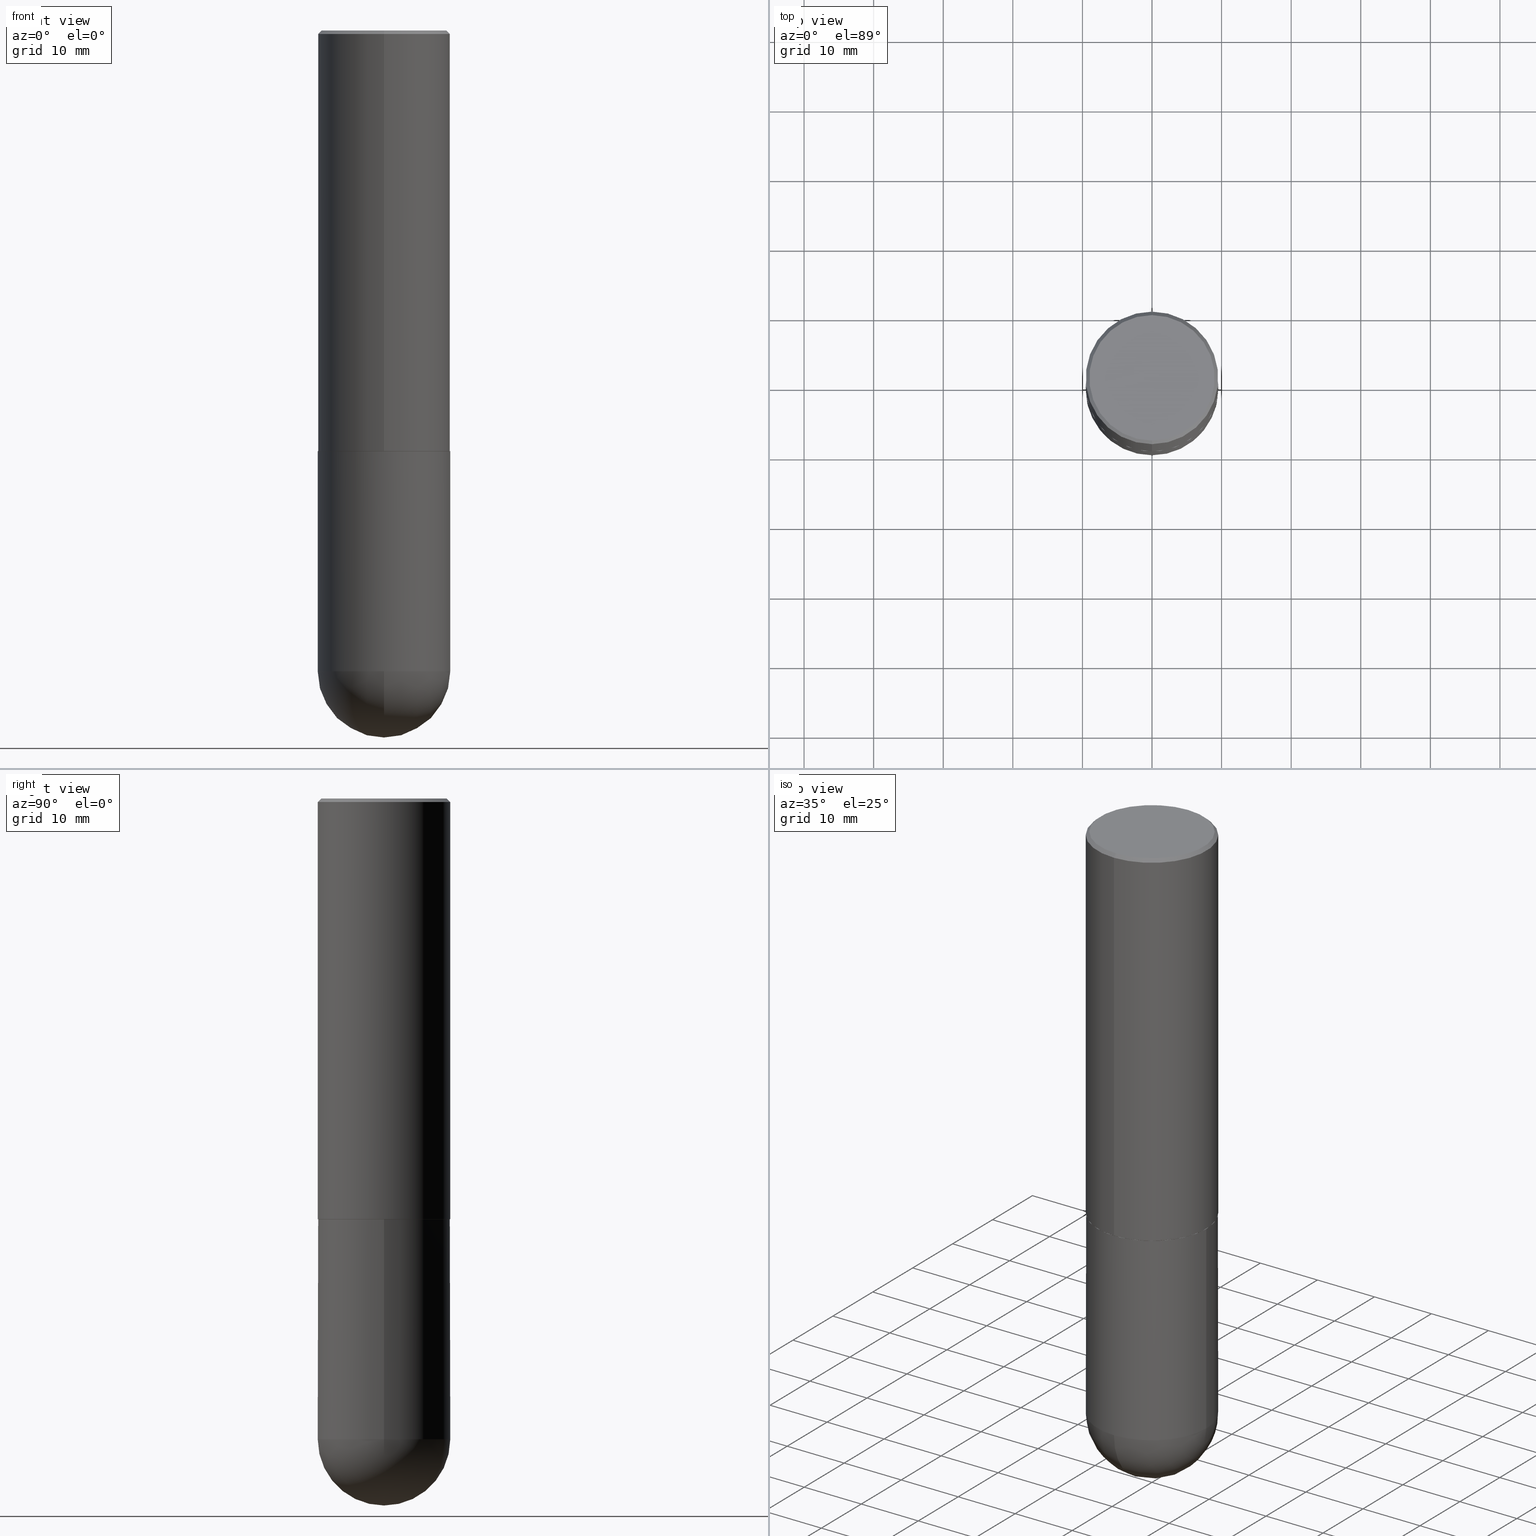
[diagram: canonical four-view strip — front | top / right | iso, engineering-drawing reading convention]
A machine part, canonical four-view strip (front | top / right | iso — engineering-drawing reading convention). The complete STEP part file that produces these views, byte-faithful:
ISO-10303-21;
HEADER;
FILE_DESCRIPTION (( 'STEP AP203' ),
    '1' );
FILE_NAME ('34637.STEP',
    '2024-02-21T18:14:20',
    ( '' ),
    ( '' ),
    'SwSTEP 2.0',
    'SolidWorks 2023',
    '' );
FILE_SCHEMA (( 'CONFIG_CONTROL_DESIGN' ));
ENDSEC;

DATA;
#1 = AXIS2_PLACEMENT_3D ( 'NONE', #201, #288, #337 ) ;
#2 = PERSON_AND_ORGANIZATION ( #281, #364 ) ;
#3 = ORIENTED_EDGE ( 'NONE', *, *, #45, .T. ) ;
#4 = EDGE_CURVE ( 'NONE', #62, #207, #394, .T. ) ;
#5 = CIRCLE ( 'NONE', #219, 0.3750000000000002776 ) ;
#6 = ORIENTED_EDGE ( 'NONE', *, *, #390, .F. ) ;
#7 = LOCAL_TIME ( 13, 14, 20.00000000000000000, #35 ) ;
#8 = ADVANCED_FACE ( 'NONE', ( #368 ), #58, .T. ) ;
#9 = CARTESIAN_POINT ( 'NONE',  ( -2.618611004132293613E-15, -0.3750000000000086597, -2.378999999999998227 ) ) ;
#10 = DIRECTION ( 'NONE',  ( -2.445088416744134467E-29, 3.492026078173082929E-15, 1.000000000000000000 ) ) ;
#11 = ORIENTED_EDGE ( 'NONE', *, *, #111, .F. ) ;
#12 = CARTESIAN_POINT ( 'NONE',  ( 2.618611004132350411E-15, 0.3749999999999999445, -0.02000000000000139513 ) ) ;
#13 = CIRCLE ( 'NONE', #322, 0.3750000000000001110 ) ;
#14 = AXIS2_PLACEMENT_3D ( 'NONE', #255, #164, #230 ) ;
#15 = ORIENTED_EDGE ( 'NONE', *, *, #61, .F. ) ;
#16 = CYLINDRICAL_SURFACE ( 'NONE', #329, 0.3750000000000001110 ) ;
#17 = EDGE_LOOP ( 'NONE', ( #213, #185, #100, #285 ) ) ;
#18 = CARTESIAN_POINT ( 'NONE',  ( 2.657429831742832670E-15, 0.3739999999999916724, -2.380000000000001226 ) ) ;
#19 = FACE_OUTER_BOUND ( 'NONE', #347, .T. ) ;
#20 = CARTESIAN_POINT ( 'NONE',  ( 0.3750000000000001110, -2.618611004132350411E-15, 1.828566290923476483E-29 ) ) ;
#21 = CIRCLE ( 'NONE', #284, 0.3549999999999999267 ) ;
#22 = DIRECTION ( 'NONE',  ( 6.982962677686265922E-15, 1.000000000000000000, -3.494488891895536035E-15 ) ) ;
#23 = LINE ( 'NONE', #402, #352 ) ;
#24 = CYLINDRICAL_SURFACE ( 'NONE', #170, 0.3750000000000001665 ) ;
#25 = DIRECTION ( 'NONE',  ( -6.982962677686266711E-15, -1.000000000000000000, 3.652203200085913145E-15 ) ) ;
#26 = DIRECTION ( 'NONE',  ( -7.105427357600999492E-15, -1.000000000000000000, 0.000000000000000000 ) ) ;
#27 = ORIENTED_EDGE ( 'NONE', *, *, #135, .F. ) ;
#28 = AXIS2_PLACEMENT_3D ( 'NONE', #184, #29, #26 ) ;
#29 = DIRECTION ( 'NONE',  ( -1.000000000000000000, 7.105427357601001070E-15, -4.926315508542082329E-29 ) ) ;
#30 = ORIENTED_EDGE ( 'NONE', *, *, #4, .T. ) ;
#31 = EDGE_LOOP ( 'NONE', ( #412, #289, #317, #310 ) ) ;
#32 = DATE_AND_TIME ( #318, #370 ) ;
#33 = CARTESIAN_POINT ( 'NONE',  ( 9.466789814748773816E-29, -1.441714559602862136E-14, -4.000000000000000000 ) ) ;
#34 = VECTOR ( 'NONE', #152, 39.37007874015748143 ) ;
#35 = COORDINATED_UNIVERSAL_TIME_OFFSET ( 5, 0, .BEHIND. ) ;
#36 = FACE_OUTER_BOUND ( 'NONE', #31, .T. ) ;
#37 = ADVANCED_FACE ( 'NONE', ( #114 ), #384, .T. ) ;
#38 = ORIENTED_EDGE ( 'NONE', *, *, #390, .T. ) ;
#39 = CALENDAR_DATE ( 2024, 21, 2 ) ;
#40 = CIRCLE ( 'NONE', #304, 0.3750000000000001110 ) ;
#41 = CC_DESIGN_SECURITY_CLASSIFICATION ( #346, ( #324 ) ) ;
#42 = DIRECTION ( 'NONE',  ( -6.982962677686265922E-15, -1.000000000000000000, 3.494488891895536035E-15 ) ) ;
#43 = EDGE_CURVE ( 'NONE', #91, #225, #126, .T. ) ;
#44 = ORIENTED_EDGE ( 'NONE', *, *, #210, .T. ) ;
#45 = EDGE_CURVE ( 'NONE', #62, #274, #204, .T. ) ;
#46 = CYLINDRICAL_SURFACE ( 'NONE', #107, 0.3750000000000001110 ) ;
#47 = ORIENTED_EDGE ( 'NONE', *, *, #386, .T. ) ;
#48 = ORIENTED_EDGE ( 'NONE', *, *, #276, .T. ) ;
#49 = AXIS2_PLACEMENT_3D ( 'NONE', #228, #209, #82 ) ;
#50 = DIRECTION ( 'NONE',  ( -2.445468806185136597E-29, 3.491481338843145583E-15, 1.000000000000000000 ) ) ;
#51 = ORIENTED_EDGE ( 'NONE', *, *, #153, .T. ) ;
#52 = ADVANCED_FACE ( 'NONE', ( #36 ), #116, .T. ) ;
#53 = CARTESIAN_POINT ( 'NONE',  ( 0.000000000000000000, 0.000000000000000000, 0.000000000000000000 ) ) ;
#54 = VECTOR ( 'NONE', #226, 39.37007874015748143 ) ;
#55 = CARTESIAN_POINT ( 'NONE',  ( 2.618611004132408392E-15, 0.3749999999999916733, -2.380000000000001226 ) ) ;
#56 = FACE_OUTER_BOUND ( 'NONE', #387, .T. ) ;
#57 = ORIENTED_EDGE ( 'NONE', *, *, #176, .T. ) ;
#58 = CONICAL_SURFACE ( 'NONE', #233, 0.3750000000000000555, 0.7853981633974472798 ) ;
#59 = AXIS2_PLACEMENT_3D ( 'NONE', #257, #138, #365 ) ;
#60 = APPROVAL_PERSON_ORGANIZATION ( #122, #252, #192 ) ;
#61 = EDGE_CURVE ( 'NONE', #315, #131, #78, .T. ) ;
#62 = VERTEX_POINT ( 'NONE', #80 ) ;
#63 = APPROVAL_DATE_TIME ( #119, #139 ) ;
#64 = APPROVAL_STATUS ( 'not_yet_approved' ) ;
#65 = AXIS2_PLACEMENT_3D ( 'NONE', #290, #336, #196 ) ;
#66 = LOCAL_TIME ( 13, 14, 20.00000000000000000, #224 ) ;
#67 = VERTEX_POINT ( 'NONE', #376 ) ;
#68 = CARTESIAN_POINT ( 'NONE',  ( 0.000000000000000000, 0.000000000000000000, 0.000000000000000000 ) ) ;
#69 = DIRECTION ( 'NONE',  ( -2.445468806185136597E-29, 3.491481338843145583E-15, 1.000000000000000000 ) ) ;
#70 = EDGE_CURVE ( 'NONE', #315, #195, #326, .T. ) ;
#71 = ORIENTED_EDGE ( 'NONE', *, *, #98, .F. ) ;
#72 =( GEOMETRIC_REPRESENTATION_CONTEXT ( 3 ) GLOBAL_UNCERTAINTY_ASSIGNED_CONTEXT ( ( #381 ) ) GLOBAL_UNIT_ASSIGNED_CONTEXT ( ( #117, #291, #216 ) ) REPRESENTATION_CONTEXT ( 'NONE', 'WORKASPACE' ) );
#73 = DIRECTION ( 'NONE',  ( 1.000000000000000000, -6.982962677686265922E-15, 4.876176775795935793E-29 ) ) ;
#74 = PRODUCT_RELATED_PRODUCT_CATEGORY ( 'detail', '', ( #397 ) ) ;
#75 = CARTESIAN_POINT ( 'NONE',  ( 8.533704644507233916E-29, -1.313080222144645289E-14, -3.624999999999999556 ) ) ;
#76 = CARTESIAN_POINT ( 'NONE',  ( 4.890176833488289918E-31, -6.984052156346196327E-17, -0.02000000000000008715 ) ) ;
#77 = EDGE_LOOP ( 'NONE', ( #189, #57, #154, #354, #3 ) ) ;
#78 = CIRCLE ( 'NONE', #1, 0.3549999999999999267 ) ;
#79 = CONICAL_SURFACE ( 'NONE', #205, 0.3750000000000000555, 0.7853981633974472798 ) ;
#80 = CARTESIAN_POINT ( 'NONE',  ( 0.3750000000000001110, -1.310178372400889468E-14, -3.624999999999999556 ) ) ;
#81 = DIRECTION ( 'NONE',  ( 6.982962677686265922E-15, 1.000000000000000000, -3.494488891895536035E-15 ) ) ;
#82 = DIRECTION ( 'NONE',  ( 6.982962677686266711E-15, 1.000000000000000000, -2.913971193241878005E-15 ) ) ;
#83 = DIRECTION ( 'NONE',  ( -2.445468806185136597E-29, 3.491481338843145583E-15, 1.000000000000000000 ) ) ;
#84 = DIRECTION ( 'NONE',  ( -6.982962677686265922E-15, -1.000000000000000000, 3.492026078173082534E-15 ) ) ;
#85 = CIRCLE ( 'NONE', #383, 0.3750000000000000555 ) ;
#86 = DIRECTION ( 'NONE',  ( -2.445088416744134467E-29, 3.492026078173082929E-15, 1.000000000000000000 ) ) ;
#87 =( LENGTH_UNIT ( ) NAMED_UNIT ( * ) SI_UNIT ( $, .METRE. ) );
#88 = ORIENTED_EDGE ( 'NONE', *, *, #70, .T. ) ;
#89 = CARTESIAN_POINT ( 'NONE',  ( 5.820215758720624069E-29, -8.309725586446685153E-15, -2.379999999999999893 ) ) ;
#90 = EDGE_LOOP ( 'NONE', ( #125, #299 ) ) ;
#91 = VERTEX_POINT ( 'NONE', #9 ) ;
#92 = PERSON_AND_ORGANIZATION ( #281, #364 ) ;
#93 = VECTOR ( 'NONE', #177, 39.37007874015748143 ) ;
#94 = EDGE_CURVE ( 'NONE', #97, #293, #311, .T. ) ;
#95 = PERSON_AND_ORGANIZATION ( #281, #364 ) ;
#96 = CC_DESIGN_APPROVAL ( #183, ( #346 ) ) ;
#97 = VERTEX_POINT ( 'NONE', #261 ) ;
#98 = EDGE_CURVE ( 'NONE', #131, #283, #23, .T. ) ;
#99 = DIRECTION ( 'NONE',  ( 1.000000000000000000, -6.982962677686265922E-15, 4.876176775795935793E-29 ) ) ;
#100 = ORIENTED_EDGE ( 'NONE', *, *, #121, .T. ) ;
#101 = CIRCLE ( 'NONE', #187, 0.3750000000000001110 ) ;
#102 = SPHERICAL_SURFACE ( 'NONE', #49, 0.3750000000000003886 ) ;
#103 = CARTESIAN_POINT ( 'NONE',  ( 2.664535259100406068E-15, 0.3749999999999919509, -2.379000000000000892 ) ) ;
#104 = DIRECTION ( 'NONE',  ( -2.445468806185136877E-29, 3.491481338843145188E-15, 1.000000000000000000 ) ) ;
#105 = CARTESIAN_POINT ( 'NONE',  ( 2.664535259100376486E-15, 0.3750000000000001665, -1.309509779314906542E-15 ) ) ;
#106 = CARTESIAN_POINT ( 'NONE',  ( 2.618611004132438763E-15, 0.3749999999999873990, -3.625000000000000888 ) ) ;
#107 = AXIS2_PLACEMENT_3D ( 'NONE', #136, #50, #73 ) ;
#108 = FACE_OUTER_BOUND ( 'NONE', #382, .T. ) ;
#109 = CC_DESIGN_APPROVAL ( #252, ( #324 ) ) ;
#110 = DIRECTION ( 'NONE',  ( -4.851104656540958753E-15, -0.7071067811865492381, -0.7071067811865457964 ) ) ;
#111 = EDGE_CURVE ( 'NONE', #367, #62, #13, .T. ) ;
#112 = CARTESIAN_POINT ( 'NONE',  ( 8.864824422421120163E-29, -1.265661985330640259E-14, -3.624999999999999556 ) ) ;
#113 = DIRECTION ( 'NONE',  ( 1.000000000000000000, -6.982962677686266711E-15, 0.000000000000000000 ) ) ;
#114 = FACE_OUTER_BOUND ( 'NONE', #395, .T. ) ;
#115 = CARTESIAN_POINT ( 'NONE',  ( 5.816865343434295520E-29, -8.307530039973762006E-15, -2.378999999999999559 ) ) ;
#116 = CONICAL_SURFACE ( 'NONE', #249, 0.3739999999999999991, 0.7853981633975507526 ) ;
#117 =( CONVERSION_BASED_UNIT ( 'INCH', #277 ) LENGTH_UNIT ( ) NAMED_UNIT ( #351 ) );
#118 = ORIENTED_EDGE ( 'NONE', *, *, #378, .F. ) ;
#119 = DATE_AND_TIME ( #39, #305 ) ;
#120 = EDGE_CURVE ( 'NONE', #293, #225, #372, .T. ) ;
#121 = EDGE_CURVE ( 'NONE', #91, #283, #405, .T. ) ;
#122 = PERSON_AND_ORGANIZATION ( #281, #364 ) ;
#123 = ORIENTED_EDGE ( 'NONE', *, *, #45, .F. ) ;
#124 = APPROVAL_STATUS ( 'not_yet_approved' ) ;
#125 = ORIENTED_EDGE ( 'NONE', *, *, #94, .F. ) ;
#126 = CIRCLE ( 'NONE', #377, 0.3750000000000002776 ) ;
#127 = ORIENTED_EDGE ( 'NONE', *, *, #307, .F. ) ;
#128 = AXIS2_PLACEMENT_3D ( 'NONE', #53, #344, #303 ) ;
#129 = ORIENTED_EDGE ( 'NONE', *, *, #401, .T. ) ;
#130 = CC_DESIGN_PERSON_AND_ORGANIZATION_ASSIGNMENT ( #278, #379, ( #397 ) ) ;
#131 = VERTEX_POINT ( 'NONE', #208 ) ;
#132 = FACE_OUTER_BOUND ( 'NONE', #407, .T. ) ;
#133 = ORIENTED_EDGE ( 'NONE', *, *, #262, .T. ) ;
#134 = CIRCLE ( 'NONE', #194, 0.3750000000000000555 ) ;
#135 = EDGE_CURVE ( 'NONE', #225, #91, #5, .T. ) ;
#136 = CARTESIAN_POINT ( 'NONE',  ( 0.000000000000000000, 0.000000000000000000, 0.000000000000000000 ) ) ;
#137 = DATE_AND_TIME ( #295, #162 ) ;
#138 = DIRECTION ( 'NONE',  ( -2.445088416744134186E-29, 3.492026078173082929E-15, 1.000000000000000000 ) ) ;
#139 = APPROVAL ( #124, 'UNSPECIFIED' ) ;
#140 = DIRECTION ( 'NONE',  ( 1.000000000000000000, -6.982962677686265922E-15, 0.000000000000000000 ) ) ;
#141 = ORIENTED_EDGE ( 'NONE', *, *, #265, .F. ) ;
#142 = DIRECTION ( 'NONE',  ( -2.445468806185136597E-29, 3.491481338843145583E-15, 1.000000000000000000 ) ) ;
#143 = CARTESIAN_POINT ( 'NONE',  ( 5.819310431851040120E-29, -8.311022066051936084E-15, -2.379999999999999893 ) ) ;
#144 = CARTESIAN_POINT ( 'NONE',  ( 5.820215758720624069E-29, -8.309725586446685153E-15, -2.379999999999999893 ) ) ;
#145 = EDGE_CURVE ( 'NONE', #225, #195, #308, .T. ) ;
#146 = EDGE_LOOP ( 'NONE', ( #71, #15, #88, #133 ) ) ;
#147 = AXIS2_PLACEMENT_3D ( 'NONE', #68, #217, #155 ) ;
#148 = DIRECTION ( 'NONE',  ( -2.445088416744134467E-29, 3.492026078173082929E-15, 1.000000000000000000 ) ) ;
#149 = EDGE_LOOP ( 'NONE', ( #297, #38 ) ) ;
#150 = CC_DESIGN_PERSON_AND_ORGANIZATION_ASSIGNMENT ( #388, #294, ( #346 ) ) ;
#151 = PRODUCT_DEFINITION_SHAPE ( 'NONE', 'NONE',  #191 ) ;
#152 = DIRECTION ( 'NONE',  ( -2.445088416744134467E-29, 3.492026078173082929E-15, 1.000000000000000000 ) ) ;
#153 = EDGE_CURVE ( 'NONE', #97, #91, #338, .T. ) ;
#154 = ORIENTED_EDGE ( 'NONE', *, *, #349, .F. ) ;
#155 = DIRECTION ( 'NONE',  ( 1.000000000000000000, 0.000000000000000000, 0.000000000000000000 ) ) ;
#156 = CC_DESIGN_PERSON_AND_ORGANIZATION_ASSIGNMENT ( #95, #158, ( #324 ) ) ;
#157 = CALENDAR_DATE ( 2024, 21, 2 ) ;
#158 = PERSON_AND_ORGANIZATION_ROLE ( 'creator' ) ;
#159 = DIRECTION ( 'NONE',  ( -2.445088416744134467E-29, 3.492026078173082929E-15, 1.000000000000000000 ) ) ;
#160 = DATE_TIME_ROLE ( 'classification_date' ) ;
#161 = CONICAL_SURFACE ( 'NONE', #214, 0.3739999999999999991, 0.7853981633975507526 ) ;
#162 = LOCAL_TIME ( 13, 14, 20.00000000000000000, #273 ) ;
#163 = VERTEX_POINT ( 'NONE', #33 ) ;
#164 = DIRECTION ( 'NONE',  ( -2.445088416744134467E-29, 3.492026078173082929E-15, 1.000000000000000000 ) ) ;
#165 = ADVANCED_FACE ( 'NONE', ( #167 ), #16, .T. ) ;
#166 = ORIENTED_EDGE ( 'NONE', *, *, #121, .F. ) ;
#167 = FACE_OUTER_BOUND ( 'NONE', #77, .T. ) ;
#168 = CC_DESIGN_DATE_AND_TIME_ASSIGNMENT ( #32, #350, ( #191 ) ) ;
#169 = CLOSED_SHELL ( 'NONE', ( #165, #301, #37, #314, #243 ) ) ;
#170 = AXIS2_PLACEMENT_3D ( 'NONE', #182, #240, #404 ) ;
#171 = PERSON_AND_ORGANIZATION_ROLE ( 'design_supplier' ) ;
#172 = DIRECTION ( 'NONE',  ( 2.445088416744134186E-29, -3.492026078173082929E-15, -1.000000000000000000 ) ) ;
#173 = EDGE_LOOP ( 'NONE', ( #234, #267 ) ) ;
#174 = CARTESIAN_POINT ( 'NONE',  ( -2.611628041454605626E-15, -0.3740000000000083813, -2.379999999999998561 ) ) ;
#175 = CARTESIAN_POINT ( 'NONE',  ( 0.000000000000000000, 0.000000000000000000, 0.000000000000000000 ) ) ;
#176 = EDGE_CURVE ( 'NONE', #67, #323, #398, .T. ) ;
#177 = DIRECTION ( 'NONE',  ( 4.937700262164542520E-15, 0.7071067811865443531, -0.7071067811865506814 ) ) ;
#178 = AXIS2_PLACEMENT_3D ( 'NONE', #198, #10, #42 ) ;
#179 = CARTESIAN_POINT ( 'NONE',  ( 4.890176833488289918E-31, -6.984052156346196327E-17, -0.02000000000000008715 ) ) ;
#180 = DIRECTION ( 'NONE',  ( 1.000000000000000000, -6.982962677686265922E-15, 0.000000000000000000 ) ) ;
#181 = CARTESIAN_POINT ( 'NONE',  ( 5.816865343434295520E-29, -8.307530039973762006E-15, -2.378999999999999559 ) ) ;
#182 = CARTESIAN_POINT ( 'NONE',  ( 0.000000000000000000, 0.000000000000000000, 0.000000000000000000 ) ) ;
#183 = APPROVAL ( #330, 'UNSPECIFIED' ) ;
#184 = CARTESIAN_POINT ( 'NONE',  ( 8.533704644507233916E-29, -1.313080222144645289E-14, -3.624999999999999556 ) ) ;
#185 = ORIENTED_EDGE ( 'NONE', *, *, #135, .T. ) ;
#186 = VECTOR ( 'NONE', #264, 39.37007874015748143 ) ;
#187 = AXIS2_PLACEMENT_3D ( 'NONE', #391, #411, #180 ) ;
#188 = EDGE_LOOP ( 'NONE', ( #218, #334, #229, #166 ) ) ;
#189 = ORIENTED_EDGE ( 'NONE', *, *, #307, .T. ) ;
#190 = COORDINATED_UNIVERSAL_TIME_OFFSET ( 5, 0, .BEHIND. ) ;
#191 = PRODUCT_DEFINITION ( 'UNKNOWN', '', #324, #272 ) ;
#192 = APPROVAL_ROLE ( '' ) ;
#193 = VECTOR ( 'NONE', #104, 39.37007874015748143 ) ;
#194 = AXIS2_PLACEMENT_3D ( 'NONE', #212, #148, #266 ) ;
#195 = VERTEX_POINT ( 'NONE', #12 ) ;
#196 = DIRECTION ( 'NONE',  ( 6.982962677686265922E-15, 1.000000000000000000, 0.000000000000000000 ) ) ;
#197 = AXIS2_PLACEMENT_3D ( 'NONE', #55, #270, #306 ) ;
#198 = CARTESIAN_POINT ( 'NONE',  ( 4.890176833488289918E-31, -6.984052156346196327E-17, -0.02000000000000008715 ) ) ;
#199 = ORIENTED_EDGE ( 'NONE', *, *, #176, .F. ) ;
#200 = CARTESIAN_POINT ( 'NONE',  ( -0.3750000000000001110, 2.664535259100376486E-15, -1.844600658845590159E-29 ) ) ;
#201 = CARTESIAN_POINT ( 'NONE',  ( -2.092106461435936214E-45, 2.987904352095746828E-31, 8.556363226413599125E-17 ) ) ;
#202 = ORIENTED_EDGE ( 'NONE', *, *, #70, .F. ) ;
#203 = DIRECTION ( 'NONE',  ( -2.445088416744134467E-29, 3.492026078173082929E-15, 1.000000000000000000 ) ) ;
#204 = CIRCLE ( 'NONE', #269, 0.3750000000000001110 ) ;
#205 = AXIS2_PLACEMENT_3D ( 'NONE', #179, #403, #22 ) ;
#206 = FACE_OUTER_BOUND ( 'NONE', #90, .T. ) ;
#207 = VERTEX_POINT ( 'NONE', #250 ) ;
#208 = CARTESIAN_POINT ( 'NONE',  ( -2.504081769186608216E-15, -0.3549999999999999267, 1.325232890015579917E-15 ) ) ;
#209 = DIRECTION ( 'NONE',  ( -1.000000000000000000, 6.982962677686266711E-15, -4.883557194083113462E-29 ) ) ;
#210 = EDGE_CURVE ( 'NONE', #163, #274, #227, .T. ) ;
#211 = AXIS2_PLACEMENT_3D ( 'NONE', #143, #251, #25 ) ;
#212 = CARTESIAN_POINT ( 'NONE',  ( 4.890176833488289918E-31, -6.984052156346196327E-17, -0.02000000000000008715 ) ) ;
#213 = ORIENTED_EDGE ( 'NONE', *, *, #145, .F. ) ;
#214 = AXIS2_PLACEMENT_3D ( 'NONE', #358, #362, #327 ) ;
#215 = APPROVAL_PERSON_ORGANIZATION ( #357, #183, #253 ) ;
#216 =( NAMED_UNIT ( * ) SI_UNIT ( $, .STERADIAN. ) SOLID_ANGLE_UNIT ( ) );
#217 = DIRECTION ( 'NONE',  ( 0.000000000000000000, 0.000000000000000000, 1.000000000000000000 ) ) ;
#218 = ORIENTED_EDGE ( 'NONE', *, *, #43, .T. ) ;
#219 = AXIS2_PLACEMENT_3D ( 'NONE', #115, #340, #343 ) ;
#220 = DIRECTION ( 'NONE',  ( -6.982962677686266711E-15, -1.000000000000000000, 3.642463991552348591E-15 ) ) ;
#221 = ORIENTED_EDGE ( 'NONE', *, *, #120, .F. ) ;
#222 = APPLICATION_CONTEXT ( 'configuration controlled 3d designs of mechanical parts and assemblies' ) ;
#223 = MECHANICAL_CONTEXT ( 'NONE', #222, 'mechanical' ) ;
#224 = COORDINATED_UNIVERSAL_TIME_OFFSET ( 5, 0, .BEHIND. ) ;
#225 = VERTEX_POINT ( 'NONE', #103 ) ;
#226 = DIRECTION ( 'NONE',  ( -2.445468806185136877E-29, 3.491481338843145188E-15, 1.000000000000000000 ) ) ;
#227 = CIRCLE ( 'NONE', #65, 0.3750000000000003886 ) ;
#228 = CARTESIAN_POINT ( 'NONE',  ( 8.533704644507233916E-29, -1.313080222144645289E-14, -3.624999999999999556 ) ) ;
#229 = ORIENTED_EDGE ( 'NONE', *, *, #401, .F. ) ;
#230 = DIRECTION ( 'NONE',  ( -6.982962677686266711E-15, -1.000000000000000000, 3.652203200085913145E-15 ) ) ;
#231 = APPROVAL_DATE_TIME ( #137, #183 ) ;
#232 = DIRECTION ( 'NONE',  ( 2.445088416744134467E-29, -3.492026078173082929E-15, -1.000000000000000000 ) ) ;
#233 = AXIS2_PLACEMENT_3D ( 'NONE', #76, #232, #81 ) ;
#234 = ORIENTED_EDGE ( 'NONE', *, *, #349, .T. ) ;
#235 = DIRECTION ( 'NONE',  ( 1.000000000000000000, -6.982962677686265922E-15, 0.000000000000000000 ) ) ;
#236 = ADVANCED_FACE ( 'NONE', ( #393 ), #335, .F. ) ;
#237 = FACE_OUTER_BOUND ( 'NONE', #173, .T. ) ;
#238 = CARTESIAN_POINT ( 'NONE',  ( -2.092106461435936214E-45, 2.987904352095746828E-31, 8.556363226413599125E-17 ) ) ;
#239 = VECTOR ( 'NONE', #319, 39.37007874015748143 ) ;
#240 = DIRECTION ( 'NONE',  ( -2.445088416744134467E-29, 3.492026078173082929E-15, 1.000000000000000000 ) ) ;
#241 = ADVANCED_FACE ( 'NONE', ( #206 ), #396, .F. ) ;
#242 = CARTESIAN_POINT ( 'NONE',  ( 2.548781377355487113E-15, 0.3549999999999999267, -1.154105625487308107E-15 ) ) ;
#243 = ADVANCED_FACE ( 'NONE', ( #108 ), #46, .T. ) ;
#244 = CIRCLE ( 'NONE', #409, 0.3750000000000000555 ) ;
#245 = ADVANCED_FACE ( 'NONE', ( #19 ), #161, .T. ) ;
#246 = DIRECTION ( 'NONE',  ( 1.000000000000000000, -6.982962677686265922E-15, 0.000000000000000000 ) ) ;
#247 = DATE_AND_TIME ( #157, #7 ) ;
#248 = CARTESIAN_POINT ( 'NONE',  ( 8.864824422421120163E-29, -1.265661985330640259E-14, -3.624999999999999556 ) ) ;
#249 = AXIS2_PLACEMENT_3D ( 'NONE', #280, #159, #356 ) ;
#250 = CARTESIAN_POINT ( 'NONE',  ( 0.3750000000000000555, -1.092833659057903675E-14, -2.379999999999999893 ) ) ;
#251 = DIRECTION ( 'NONE',  ( -2.445088416744134467E-29, 3.492026078173082929E-15, 1.000000000000000000 ) ) ;
#252 = APPROVAL ( #64, 'UNSPECIFIED' ) ;
#253 = APPROVAL_ROLE ( '' ) ;
#254 = ORIENTED_EDGE ( 'NONE', *, *, #265, .T. ) ;
#255 = CARTESIAN_POINT ( 'NONE',  ( 5.819310431851040120E-29, -8.311022066051936084E-15, -2.379999999999999893 ) ) ;
#256 = ORIENTED_EDGE ( 'NONE', *, *, #111, .T. ) ;
#257 = CARTESIAN_POINT ( 'NONE',  ( 5.819310431851040120E-29, -8.311022066051936084E-15, -2.379999999999999893 ) ) ;
#258 = CARTESIAN_POINT ( 'NONE',  ( -2.572686749164323547E-15, -0.3750000000000001110, -0.01999999999999877570 ) ) ;
#259 = AXIS2_PLACEMENT_3D ( 'NONE', #75, #408, #375 ) ;
#260 = ORIENTED_EDGE ( 'NONE', *, *, #386, .F. ) ;
#261 = CARTESIAN_POINT ( 'NONE',  ( -2.611628041454605626E-15, -0.3740000000000083813, -2.379999999999998561 ) ) ;
#262 = EDGE_CURVE ( 'NONE', #195, #283, #399, .T. ) ;
#263 = DIRECTION ( 'NONE',  ( -2.445468806185136597E-29, 3.491481338843145583E-15, 1.000000000000000000 ) ) ;
#264 = DIRECTION ( 'NONE',  ( 5.024295867788576727E-15, 0.7071067811866224018, 0.7071067811864726327 ) ) ;
#265 = EDGE_CURVE ( 'NONE', #67, #367, #40, .T. ) ;
#266 = DIRECTION ( 'NONE',  ( -6.982962677686265922E-15, -1.000000000000000000, 3.494488891895536035E-15 ) ) ;
#267 = ORIENTED_EDGE ( 'NONE', *, *, #378, .T. ) ;
#268 = ADVANCED_BREP_SHAPE_REPRESENTATION ( '34637', ( #321, #320, #147 ), #72 ) ;
#269 = AXIS2_PLACEMENT_3D ( 'NONE', #248, #69, #246 ) ;
#270 = DIRECTION ( 'NONE',  ( 2.438088387897960049E-29, -3.491481338843145188E-15, -1.000000000000000000 ) ) ;
#271 = CIRCLE ( 'NONE', #28, 0.3750000000000003886 ) ;
#272 = DESIGN_CONTEXT ( 'detailed design', #292, 'design' ) ;
#273 = COORDINATED_UNIVERSAL_TIME_OFFSET ( 5, 0, .BEHIND. ) ;
#274 = VERTEX_POINT ( 'NONE', #106 ) ;
#275 = COORDINATED_UNIVERSAL_TIME_OFFSET ( 5, 0, .BEHIND. ) ;
#276 = EDGE_CURVE ( 'NONE', #293, #97, #353, .T. ) ;
#277 = LENGTH_MEASURE_WITH_UNIT ( LENGTH_MEASURE( 0.02539999999999999897 ), #87 );
#278 = PERSON_AND_ORGANIZATION ( #281, #364 ) ;
#279 = CARTESIAN_POINT ( 'NONE',  ( -2.618611004132351200E-15, -0.3750000000000001665, 1.309509779314906542E-15 ) ) ;
#280 = CARTESIAN_POINT ( 'NONE',  ( 5.819310431851040120E-29, -8.311022066051936084E-15, -2.379999999999999893 ) ) ;
#281 = PERSON ( 'UNSPECIFIED', 'UNSPECIFIED', 'UNSPECIFIED', ('UNSPECIFIED'), ('UNSPECIFIED'), ('UNSPECIFIED') ) ;
#282 = PERSON_AND_ORGANIZATION ( #281, #364 ) ;
#283 = VERTEX_POINT ( 'NONE', #258 ) ;
#284 = AXIS2_PLACEMENT_3D ( 'NONE', #238, #374, #84 ) ;
#285 = ORIENTED_EDGE ( 'NONE', *, *, #262, .F. ) ;
#286 = CARTESIAN_POINT ( 'NONE',  ( 8.864824422421120163E-29, -1.265661985330640259E-14, -3.624999999999999556 ) ) ;
#287 = CC_DESIGN_DATE_AND_TIME_ASSIGNMENT ( #361, #160, ( #346 ) ) ;
#288 = DIRECTION ( 'NONE',  ( -2.445088416744134467E-29, 3.492026078173082929E-15, 1.000000000000000000 ) ) ;
#289 = ORIENTED_EDGE ( 'NONE', *, *, #120, .T. ) ;
#290 = CARTESIAN_POINT ( 'NONE',  ( 8.533704644507233916E-29, -1.313080222144645289E-14, -3.624999999999999556 ) ) ;
#291 =( NAMED_UNIT ( * ) PLANE_ANGLE_UNIT ( ) SI_UNIT ( $, .RADIAN. ) );
#292 = APPLICATION_CONTEXT ( 'configuration controlled 3d designs of mechanical parts and assemblies' ) ;
#293 = VERTEX_POINT ( 'NONE', #331 ) ;
#294 = PERSON_AND_ORGANIZATION_ROLE ( 'classification_officer' ) ;
#295 = CALENDAR_DATE ( 2024, 21, 2 ) ;
#296 = AXIS2_PLACEMENT_3D ( 'NONE', #389, #172, #298 ) ;
#297 = ORIENTED_EDGE ( 'NONE', *, *, #61, .T. ) ;
#298 = DIRECTION ( 'NONE',  ( 6.982962677686265922E-15, 1.000000000000000000, -3.492026078173082929E-15 ) ) ;
#299 = ORIENTED_EDGE ( 'NONE', *, *, #276, .F. ) ;
#300 = DIRECTION ( 'NONE',  ( -2.445468806185136597E-29, 3.491481338843145583E-15, 1.000000000000000000 ) ) ;
#301 = ADVANCED_FACE ( 'NONE', ( #132 ), #102, .T. ) ;
#302 = ORIENTED_EDGE ( 'NONE', *, *, #98, .T. ) ;
#303 = DIRECTION ( 'NONE',  ( -6.982962677686266711E-15, -1.000000000000000000, 3.492026078173082534E-15 ) ) ;
#304 = AXIS2_PLACEMENT_3D ( 'NONE', #286, #339, #140 ) ;
#305 = LOCAL_TIME ( 13, 14, 20.00000000000000000, #275 ) ;
#306 = DIRECTION ( 'NONE',  ( -1.000000000000000000, 6.982962677686265922E-15, -4.876176775795935793E-29 ) ) ;
#307 = EDGE_CURVE ( 'NONE', #274, #67, #101, .T. ) ;
#308 = LINE ( 'NONE', #105, #363 ) ;
#309 = CARTESIAN_POINT ( 'NONE',  ( -2.664535259100290106E-15, -0.3750000000000131006, -3.624999999999998668 ) ) ;
#310 = ORIENTED_EDGE ( 'NONE', *, *, #153, .F. ) ;
#311 = CIRCLE ( 'NONE', #211, 0.3739999999999999991 ) ;
#312 = FACE_OUTER_BOUND ( 'NONE', #188, .T. ) ;
#313 = APPROVAL_PERSON_ORGANIZATION ( #2, #139, #325 ) ;
#314 = ADVANCED_FACE ( 'NONE', ( #237 ), #406, .F. ) ;
#315 = VERTEX_POINT ( 'NONE', #242 ) ;
#316 = PERSON_AND_ORGANIZATION_ROLE ( 'creator' ) ;
#317 = ORIENTED_EDGE ( 'NONE', *, *, #43, .F. ) ;
#318 = CALENDAR_DATE ( 2024, 21, 2 ) ;
#319 = DIRECTION ( 'NONE',  ( -4.937700262165053702E-15, -0.7071067811866175168, 0.7071067811864775177 ) ) ;
#320 = MANIFOLD_SOLID_BREP ( 'Body-Move/Copy2[2]', #392 ) ;
#321 = MANIFOLD_SOLID_BREP ( 'Body-Move/Copy2[1]', #169 ) ;
#322 = AXIS2_PLACEMENT_3D ( 'NONE', #112, #83, #235 ) ;
#323 = VERTEX_POINT ( 'NONE', #410 ) ;
#324 = PRODUCT_DEFINITION_FORMATION_WITH_SPECIFIED_SOURCE ( 'ANY', '', #397, .NOT_KNOWN. ) ;
#325 = APPROVAL_ROLE ( '' ) ;
#326 = LINE ( 'NONE', #333, #93 ) ;
#327 = DIRECTION ( 'NONE',  ( -6.982962677686266711E-15, -1.000000000000000000, 3.652203200085913145E-15 ) ) ;
#328 = ADVANCED_FACE ( 'NONE', ( #371 ), #341, .T. ) ;
#329 = AXIS2_PLACEMENT_3D ( 'NONE', #175, #300, #99 ) ;
#330 = APPROVAL_STATUS ( 'not_yet_approved' ) ;
#331 = CARTESIAN_POINT ( 'NONE',  ( 2.660982545421633963E-15, 0.3739999999999916724, -2.380000000000001226 ) ) ;
#332 = CC_DESIGN_PERSON_AND_ORGANIZATION_ASSIGNMENT ( #92, #316, ( #191 ) ) ;
#333 = CARTESIAN_POINT ( 'NONE',  ( 2.618611004132350411E-15, 0.3749999999999999445, -0.02000000000000139513 ) ) ;
#334 = ORIENTED_EDGE ( 'NONE', *, *, #145, .T. ) ;
#335 = PLANE ( 'NONE',  #296 ) ;
#336 = DIRECTION ( 'NONE',  ( 1.000000000000000000, -6.982962677686265922E-15, 4.883557194083112340E-29 ) ) ;
#337 = DIRECTION ( 'NONE',  ( -6.982962677686265922E-15, -1.000000000000000000, 3.492026078173082534E-15 ) ) ;
#338 = LINE ( 'NONE', #174, #239 ) ;
#339 = DIRECTION ( 'NONE',  ( -2.445468806185136597E-29, 3.491481338843145583E-15, 1.000000000000000000 ) ) ;
#340 = DIRECTION ( 'NONE',  ( -2.445088416744134467E-29, 3.492026078173082929E-15, 1.000000000000000000 ) ) ;
#341 = CYLINDRICAL_SURFACE ( 'NONE', #128, 0.3750000000000001665 ) ;
#342 = ADVANCED_FACE ( 'NONE', ( #312 ), #24, .T. ) ;
#343 = DIRECTION ( 'NONE',  ( -6.982962677686266711E-15, -1.000000000000000000, 3.642463991552348591E-15 ) ) ;
#344 = DIRECTION ( 'NONE',  ( -2.445088416744134467E-29, 3.492026078173082929E-15, 1.000000000000000000 ) ) ;
#345 = DIRECTION ( 'NONE',  ( 1.000000000000000000, -6.982962677686266711E-15, 0.000000000000000000 ) ) ;
#346 = SECURITY_CLASSIFICATION ( '', '', #385 ) ;
#347 = EDGE_LOOP ( 'NONE', ( #221, #48, #51, #27 ) ) ;
#348 = APPLICATION_PROTOCOL_DEFINITION ( 'international standard', 'config_control_design', 1994, #222 ) ;
#349 = EDGE_CURVE ( 'NONE', #207, #323, #85, .T. ) ;
#350 = DATE_TIME_ROLE ( 'creation_date' ) ;
#351 = DIMENSIONAL_EXPONENTS ( 1.000000000000000000, 0.000000000000000000, 0.000000000000000000, 0.000000000000000000, 0.000000000000000000, 0.000000000000000000, 0.000000000000000000 ) ;
#352 = VECTOR ( 'NONE', #110, 39.37007874015748143 ) ;
#353 = CIRCLE ( 'NONE', #14, 0.3739999999999999991 ) ;
#354 = ORIENTED_EDGE ( 'NONE', *, *, #4, .F. ) ;
#355 = APPLICATION_PROTOCOL_DEFINITION ( 'international standard', 'config_control_design', 1994, #292 ) ;
#356 = DIRECTION ( 'NONE',  ( -6.982962677686266711E-15, -1.000000000000000000, 3.652203200085913145E-15 ) ) ;
#357 = PERSON_AND_ORGANIZATION ( #281, #364 ) ;
#358 = CARTESIAN_POINT ( 'NONE',  ( 5.819310431851040120E-29, -8.311022066051936084E-15, -2.379999999999999893 ) ) ;
#359 = ADVANCED_FACE ( 'NONE', ( #56 ), #79, .T. ) ;
#360 = ORIENTED_EDGE ( 'NONE', *, *, #210, .F. ) ;
#361 = DATE_AND_TIME ( #369, #66 ) ;
#362 = DIRECTION ( 'NONE',  ( -2.445088416744134467E-29, 3.492026078173082929E-15, 1.000000000000000000 ) ) ;
#363 = VECTOR ( 'NONE', #203, 39.37007874015748143 ) ;
#364 = ORGANIZATION ( 'UNSPECIFIED', 'UNSPECIFIED', '' ) ;
#365 = DIRECTION ( 'NONE',  ( -6.982962677686265922E-15, -1.000000000000000000, 3.492026078173082929E-15 ) ) ;
#366 = SHAPE_DEFINITION_REPRESENTATION ( #151, #268 ) ;
#367 = VERTEX_POINT ( 'NONE', #309 ) ;
#368 = FACE_OUTER_BOUND ( 'NONE', #146, .T. ) ;
#369 = CALENDAR_DATE ( 2024, 21, 2 ) ;
#370 = LOCAL_TIME ( 13, 14, 20.00000000000000000, #190 ) ;
#371 = FACE_OUTER_BOUND ( 'NONE', #17, .T. ) ;
#372 = LINE ( 'NONE', #18, #186 ) ;
#373 = CC_DESIGN_PERSON_AND_ORGANIZATION_ASSIGNMENT ( #282, #171, ( #324 ) ) ;
#374 = DIRECTION ( 'NONE',  ( -2.445088416744134467E-29, 3.492026078173082929E-15, 1.000000000000000000 ) ) ;
#375 = DIRECTION ( 'NONE',  ( 6.982962677686266711E-15, 1.000000000000000000, -2.913971193241878005E-15 ) ) ;
#376 = CARTESIAN_POINT ( 'NONE',  ( -0.3750000000000001110, -7.818637460776168963E-15, -3.624999999999999556 ) ) ;
#377 = AXIS2_PLACEMENT_3D ( 'NONE', #181, #86, #220 ) ;
#378 = EDGE_CURVE ( 'NONE', #323, #207, #244, .T. ) ;
#379 = PERSON_AND_ORGANIZATION_ROLE ( 'design_owner' ) ;
#380 = APPROVAL_DATE_TIME ( #247, #252 ) ;
#381 = UNCERTAINTY_MEASURE_WITH_UNIT (LENGTH_MEASURE( 1.000000000000000082E-05 ), #117, 'distance_accuracy_value', 'NONE');
#382 = EDGE_LOOP ( 'NONE', ( #199, #254, #256, #30, #118 ) ) ;
#383 = AXIS2_PLACEMENT_3D ( 'NONE', #89, #142, #345 ) ;
#384 = SPHERICAL_SURFACE ( 'NONE', #259, 0.3750000000000003886 ) ;
#385 = SECURITY_CLASSIFICATION_LEVEL ( 'unclassified' ) ;
#386 = EDGE_CURVE ( 'NONE', #163, #367, #271, .T. ) ;
#387 = EDGE_LOOP ( 'NONE', ( #6, #302, #129, #202 ) ) ;
#388 = PERSON_AND_ORGANIZATION ( #281, #364 ) ;
#389 = CARTESIAN_POINT ( 'NONE',  ( 2.478951750578623815E-15, 0.3549999999999999267, -1.196887441619376108E-15 ) ) ;
#390 = EDGE_CURVE ( 'NONE', #131, #315, #21, .T. ) ;
#391 = CARTESIAN_POINT ( 'NONE',  ( 8.864824422421120163E-29, -1.265661985330640259E-14, -3.624999999999999556 ) ) ;
#392 = CLOSED_SHELL ( 'NONE', ( #52, #342, #359, #8, #328, #245, #241, #236 ) ) ;
#393 = FACE_OUTER_BOUND ( 'NONE', #149, .T. ) ;
#394 = LINE ( 'NONE', #20, #193 ) ;
#395 = EDGE_LOOP ( 'NONE', ( #260, #44, #123, #11 ) ) ;
#396 = PLANE ( 'NONE',  #59 ) ;
#397 = PRODUCT ( '34637', '34637', '', ( #223 ) ) ;
#398 = LINE ( 'NONE', #200, #54 ) ;
#399 = CIRCLE ( 'NONE', #178, 0.3750000000000000555 ) ;
#400 = CC_DESIGN_APPROVAL ( #139, ( #191 ) ) ;
#401 = EDGE_CURVE ( 'NONE', #283, #195, #134, .T. ) ;
#402 = CARTESIAN_POINT ( 'NONE',  ( -2.572686749164323547E-15, -0.3750000000000001110, -0.01999999999999877570 ) ) ;
#403 = DIRECTION ( 'NONE',  ( 2.445088416744134467E-29, -3.492026078173082929E-15, -1.000000000000000000 ) ) ;
#404 = DIRECTION ( 'NONE',  ( -6.982962677686266711E-15, -1.000000000000000000, 3.492026078173082534E-15 ) ) ;
#405 = LINE ( 'NONE', #279, #34 ) ;
#406 = PLANE ( 'NONE',  #197 ) ;
#407 = EDGE_LOOP ( 'NONE', ( #360, #47, #141, #127 ) ) ;
#408 = DIRECTION ( 'NONE',  ( -1.000000000000000000, 6.982962677686266711E-15, -4.883557194083113462E-29 ) ) ;
#409 = AXIS2_PLACEMENT_3D ( 'NONE', #144, #263, #113 ) ;
#410 = CARTESIAN_POINT ( 'NONE',  ( -0.3750000000000000555, -7.818637460776167385E-15, -2.379999999999999893 ) ) ;
#411 = DIRECTION ( 'NONE',  ( -2.445468806185136597E-29, 3.491481338843145583E-15, 1.000000000000000000 ) ) ;
#412 = ORIENTED_EDGE ( 'NONE', *, *, #94, .T. ) ;
ENDSEC;
END-ISO-10303-21;
